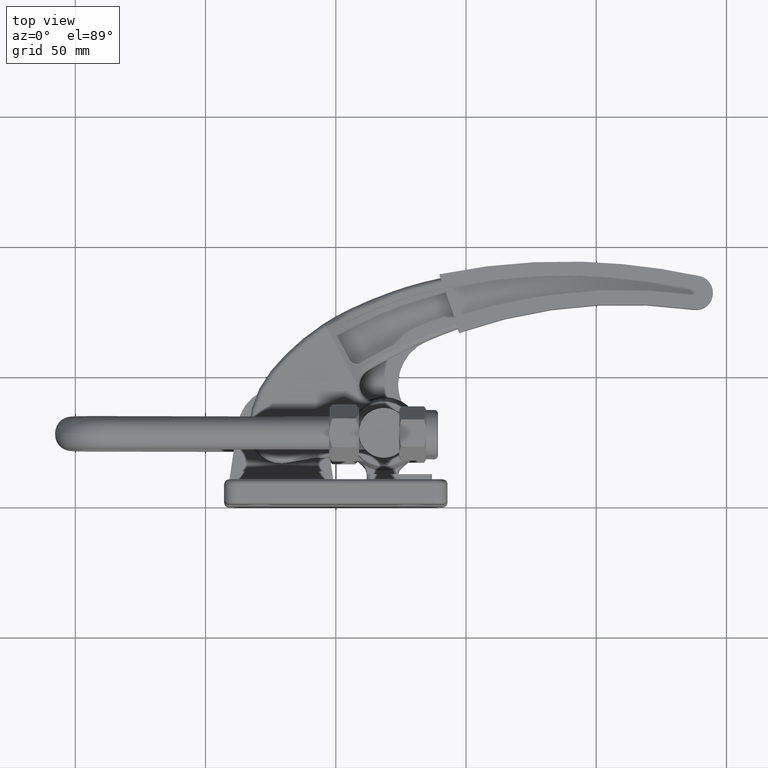
[diagram: clean part render]
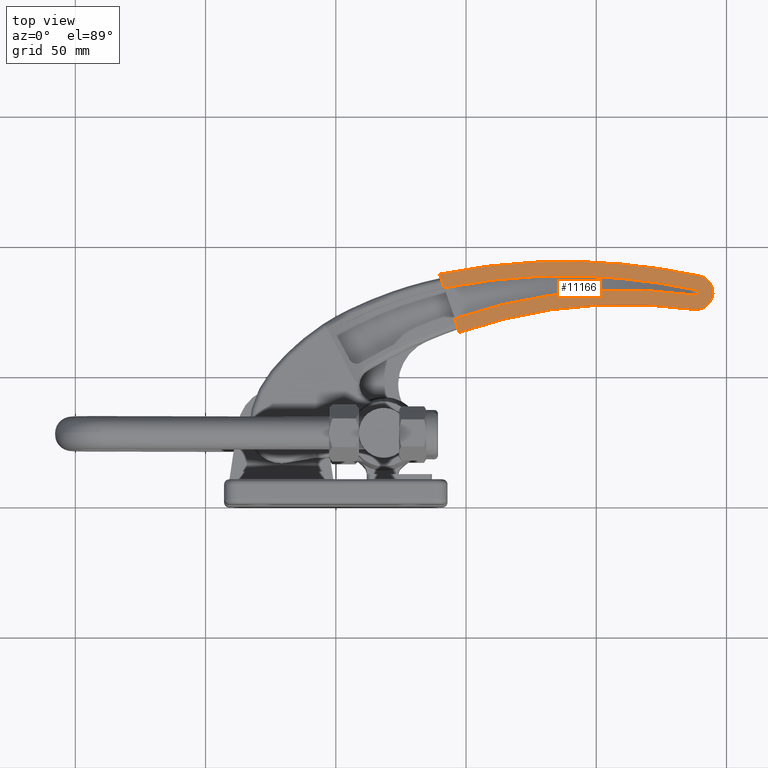
[diagram: same view with one face highlighted and labeled with its STEP entity id]
A machine part, top view. The second image highlights one B-rep face of the part: STEP entity #11166.
In plain terms, the highlighted planar face has unit normal (0, 0, 1).
Its self-contained STEP definition (entity closure, byte-faithful):
#222 = VERTEX_POINT ( 'NONE', #5980 ) ;
#911 = CARTESIAN_POINT ( 'NONE',  ( 94.87340458729696000, 93.64423540940474300, 7.499999999999999100 ) ) ;
#988 = CARTESIAN_POINT ( 'NONE',  ( 47.43252671059751400, 66.53173684207375500, 7.499999999999999100 ) ) ;
#1128 = CIRCLE ( 'NONE', #10794, 146.0000000000000000 ) ;
#1360 = AXIS2_PLACEMENT_3D ( 'NONE', #7914, #1967, #8925 ) ;
#1401 = AXIS2_PLACEMENT_3D ( 'NONE', #11008, #4984, #12006 ) ;
#1775 = ORIENTED_EDGE ( 'NONE', *, *, #11698, .T. ) ;
#1804 = ORIENTED_EDGE ( 'NONE', *, *, #8759, .F. ) ;
#1834 = CARTESIAN_POINT ( 'NONE',  ( 42.55375119779429100, 83.79626439661022600, 7.499999999999999100 ) ) ;
#1967 = DIRECTION ( 'NONE',  ( -0.0000000000000000000, 0.0000000000000000000, -1.000000000000000000 ) ) ;
#2015 = DIRECTION ( 'NONE',  ( 0.3235950078381081800, -0.9461956831978545200, 0.0000000000000000000 ) ) ;
#2427 = DIRECTION ( 'NONE',  ( 0.0000000000000000000, 0.0000000000000000000, 1.000000000000000000 ) ) ;
#2520 = CIRCLE ( 'NONE', #1360, 190.5000000000000600 ) ;
#2587 = CIRCLE ( 'NONE', #1401, 241.0000000000000300 ) ;
#2628 = VERTEX_POINT ( 'NONE', #5590 ) ;
#3198 = ORIENTED_EDGE ( 'NONE', *, *, #10020, .F. ) ;
#3353 = CARTESIAN_POINT ( 'NONE',  ( 137.3676987927290400, 75.36749533969890500, 7.499999999999999100 ) ) ;
#3560 = CARTESIAN_POINT ( 'NONE',  ( 94.70680217560476400, 88.14675929427542700, 7.499999999999999100 ) ) ;
#3565 = EDGE_CURVE ( 'NONE', #7990, #222, #1128, .T. ) ;
#3676 = CARTESIAN_POINT ( 'NONE',  ( 45.65270054022794700, 71.73596990641313200, 7.499999999999999100 ) ) ;
#3736 = VERTEX_POINT ( 'NONE', #3560 ) ;
#3821 = VERTEX_POINT ( 'NONE', #3676 ) ;
#3953 = CARTESIAN_POINT ( 'NONE',  ( 39.80002990425727200, 88.84924902629627800, 7.499999999999999100 ) ) ;
#4079 = ORIENTED_EDGE ( 'NONE', *, *, #6154, .T. ) ;
#4175 = EDGE_CURVE ( 'NONE', #4869, #10210, #2520, .T. ) ;
#4187 = AXIS2_PLACEMENT_3D ( 'NONE', #8393, #2427, #9399 ) ;
#4341 = ORIENTED_EDGE ( 'NONE', *, *, #12732, .T. ) ;
#4550 = VERTEX_POINT ( 'NONE', #9247 ) ;
#4574 = ORIENTED_EDGE ( 'NONE', *, *, #12062, .F. ) ;
#4628 = CARTESIAN_POINT ( 'NONE',  ( 87.70950088453489000, -142.7472375411598500, 7.499999999999999100 ) ) ;
#4681 = CIRCLE ( 'NONE', #6089, 0.9999999999999839000 ) ;
#4869 = VERTEX_POINT ( 'NONE', #988 ) ;
#4924 = DIRECTION ( 'NONE',  ( 0.0000000000000000000, 0.0000000000000000000, 1.000000000000000000 ) ) ;
#4974 = DIRECTION ( 'NONE',  ( 0.0000000000000000000, 0.0000000000000000000, 1.000000000000000000 ) ) ;
#4984 = DIRECTION ( 'NONE',  ( 0.0000000000000000000, 0.0000000000000000000, 1.000000000000000000 ) ) ;
#5297 = AXIS2_PLACEMENT_3D ( 'NONE', #5780, #12768, #6791 ) ;
#5347 = DIRECTION ( 'NONE',  ( 0.0000000000000000000, 0.0000000000000000000, 1.000000000000000000 ) ) ;
#5351 = CARTESIAN_POINT ( 'NONE',  ( 138.2846232747321800, 81.80249724290790400, 7.499999999999999100 ) ) ;
#5371 = DIRECTION ( 'NONE',  ( 0.0000000000000000000, 0.0000000000000000000, 1.000000000000000000 ) ) ;
#5432 = CARTESIAN_POINT ( 'NONE',  ( 39.80002990425725100, 88.84924902629627800, 7.499999999999999100 ) ) ;
#5550 = DIRECTION ( 'NONE',  ( 0.0000000000000000000, 0.0000000000000000000, 1.000000000000000000 ) ) ;
#5590 = CARTESIAN_POINT ( 'NONE',  ( 138.4966150908405800, 82.77976868416823200, 7.499999999999999100 ) ) ;
#5630 = DIRECTION ( 'NONE',  ( 0.9995411118417111300, -0.03029134758038943100, 0.0000000000000000000 ) ) ;
#5757 = AXIS2_PLACEMENT_3D ( 'NONE', #4628, #11636, #5630 ) ;
#5780 = CARTESIAN_POINT ( 'NONE',  ( 110.4947582047914400, -113.2275604389645900, 7.499999999999999100 ) ) ;
#5980 = CARTESIAN_POINT ( 'NONE',  ( 41.59465351681020500, 83.60174806357420600, 7.499999999999999100 ) ) ;
#5998 = CIRCLE ( 'NONE', #5297, 196.0000000000000900 ) ;
#6089 = AXIS2_PLACEMENT_3D ( 'NONE', #10999, #4974, #12000 ) ;
#6154 = EDGE_CURVE ( 'NONE', #6301, #9243, #10310, .T. ) ;
#6285 = CIRCLE ( 'NONE', #8763, 0.9999999999999839000 ) ;
#6294 = ORIENTED_EDGE ( 'NONE', *, *, #3565, .F. ) ;
#6301 = VERTEX_POINT ( 'NONE', #12707 ) ;
#6317 = ORIENTED_EDGE ( 'NONE', *, *, #12884, .F. ) ;
#6372 = DIRECTION ( 'NONE',  ( 0.9995411118417112400, -0.03029134758038857000, 0.0000000000000000000 ) ) ;
#6610 = VERTEX_POINT ( 'NONE', #12829 ) ;
#6667 = EDGE_CURVE ( 'NONE', #7503, #222, #10456, .T. ) ;
#6791 = DIRECTION ( 'NONE',  ( 0.9995411118417110200, -0.03029134758039207100, 0.0000000000000000000 ) ) ;
#6932 = LINE ( 'NONE', #5432, #9278 ) ;
#6958 = ORIENTED_EDGE ( 'NONE', *, *, #6667, .T. ) ;
#7503 = VERTEX_POINT ( 'NONE', #3953 ) ;
#7626 = ORIENTED_EDGE ( 'NONE', *, *, #9671, .T. ) ;
#7784 = VECTOR ( 'NONE', #2015, 999.9999999999998900 ) ;
#7809 = CIRCLE ( 'NONE', #5757, 236.4999999999999100 ) ;
#7914 = CARTESIAN_POINT ( 'NONE',  ( 110.4947582047914400, -113.2275604389645900, 7.499999999999999100 ) ) ;
#7931 = CARTESIAN_POINT ( 'NONE',  ( 39.80002990425725100, 88.84924902629627800, 7.499999999999999100 ) ) ;
#7941 = AXIS2_PLACEMENT_3D ( 'NONE', #11548, #5550, #12546 ) ;
#7990 = VERTEX_POINT ( 'NONE', #1834 ) ;
#8051 = CIRCLE ( 'NONE', #8566, 6.499999999999923600 ) ;
#8393 = CARTESIAN_POINT ( 'NONE',  ( 138.2846232747321800, 81.80249724290790400, 7.499999999999999100 ) ) ;
#8536 = EDGE_CURVE ( 'NONE', #3736, #7990, #11153, .T. ) ;
#8566 = AXIS2_PLACEMENT_3D ( 'NONE', #5351, #12350, #6372 ) ;
#8759 = EDGE_CURVE ( 'NONE', #6610, #4550, #6285, .T. ) ;
#8763 = AXIS2_PLACEMENT_3D ( 'NONE', #10924, #4924, #11936 ) ;
#8925 = DIRECTION ( 'NONE',  ( 0.9995411118417111300, -0.03029134758038945800, 0.0000000000000000000 ) ) ;
#9243 = VERTEX_POINT ( 'NONE', #911 ) ;
#9247 = CARTESIAN_POINT ( 'NONE',  ( 139.2841643865738800, 81.77220589532751700, 7.499999999999999100 ) ) ;
#9278 = VECTOR ( 'NONE', #12445, 999.9999999999998900 ) ;
#9399 = DIRECTION ( 'NONE',  ( 0.9995411118417111300, -0.03029134758038943400, 0.0000000000000000000 ) ) ;
#9568 = ORIENTED_EDGE ( 'NONE', *, *, #8536, .F. ) ;
#9671 = EDGE_CURVE ( 'NONE', #9243, #7503, #7809, .T. ) ;
#9688 = AXIS2_PLACEMENT_3D ( 'NONE', #11371, #5371, #12367 ) ;
#10020 = EDGE_CURVE ( 'NONE', #4550, #2628, #4681, .T. ) ;
#10210 = VERTEX_POINT ( 'NONE', #3353 ) ;
#10308 = PLANE ( 'NONE',  #4187 ) ;
#10310 = CIRCLE ( 'NONE', #7941, 246.4999999999999100 ) ;
#10408 = EDGE_LOOP ( 'NONE', ( #6317, #4341, #12248, #1775, #4079, #7626, #6958, #6294, #9568, #4574, #3198, #1804 ) ) ;
#10456 = LINE ( 'NONE', #7931, #7784 ) ;
#10794 = AXIS2_PLACEMENT_3D ( 'NONE', #11358, #5347, #12349 ) ;
#10924 = CARTESIAN_POINT ( 'NONE',  ( 138.2846232747321800, 81.80249724290790400, 7.499999999999999100 ) ) ;
#10999 = CARTESIAN_POINT ( 'NONE',  ( 138.2846232747321800, 81.80249724290790400, 7.499999999999999100 ) ) ;
#11008 = CARTESIAN_POINT ( 'NONE',  ( 87.40658740873099900, -152.7426486595769600, 7.499999999999999100 ) ) ;
#11153 = CIRCLE ( 'NONE', #9688, 231.0000000000000000 ) ;
#11166 = ADVANCED_FACE ( 'NONE', ( #12938 ), #10308, .T. ) ;
#11358 = CARTESIAN_POINT ( 'NONE',  ( 71.09374883530134100, -59.38707449046522400, 7.499999999999999100 ) ) ;
#11371 = CARTESIAN_POINT ( 'NONE',  ( 87.70950088453489000, -142.7472375411598500, 7.499999999999999100 ) ) ;
#11548 = CARTESIAN_POINT ( 'NONE',  ( 87.40658740873099900, -152.7426486595769600, 7.499999999999999100 ) ) ;
#11636 = DIRECTION ( 'NONE',  ( 0.0000000000000000000, 0.0000000000000000000, 1.000000000000000000 ) ) ;
#11698 = EDGE_CURVE ( 'NONE', #10210, #6301, #8051, .T. ) ;
#11936 = DIRECTION ( 'NONE',  ( 0.9995411118417113500, -0.03029134758038336600, 0.0000000000000000000 ) ) ;
#12000 = DIRECTION ( 'NONE',  ( 0.9995411118417113500, -0.03029134758038336600, 0.0000000000000000000 ) ) ;
#12006 = DIRECTION ( 'NONE',  ( 0.9995411118417111300, -0.03029134758038937900, 0.0000000000000000000 ) ) ;
#12062 = EDGE_CURVE ( 'NONE', #2628, #3736, #2587, .T. ) ;
#12248 = ORIENTED_EDGE ( 'NONE', *, *, #4175, .T. ) ;
#12349 = DIRECTION ( 'NONE',  ( 0.9995411118417112400, -0.03029134758038943400, 0.0000000000000000000 ) ) ;
#12350 = DIRECTION ( 'NONE',  ( 0.0000000000000000000, 0.0000000000000000000, 1.000000000000000000 ) ) ;
#12367 = DIRECTION ( 'NONE',  ( 0.9995411118417111300, -0.03029134758038942700, 0.0000000000000000000 ) ) ;
#12445 = DIRECTION ( 'NONE',  ( 0.3235950078381081800, -0.9461956831978545200, 0.0000000000000000000 ) ) ;
#12546 = DIRECTION ( 'NONE',  ( 0.9995411118417111300, -0.03029134758038939300, 0.0000000000000000000 ) ) ;
#12707 = CARTESIAN_POINT ( 'NONE',  ( 139.6625700794363600, 88.15476161110007100, 7.499999999999999100 ) ) ;
#12732 = EDGE_CURVE ( 'NONE', #3821, #4869, #6932, .T. ) ;
#12768 = DIRECTION ( 'NONE',  ( -0.0000000000000000000, -0.0000000000000000000, -1.000000000000000000 ) ) ;
#12829 = CARTESIAN_POINT ( 'NONE',  ( 138.1435579698086300, 80.81249695010653500, 7.499999999999999100 ) ) ;
#12884 = EDGE_CURVE ( 'NONE', #3821, #6610, #5998, .T. ) ;
#12938 = FACE_OUTER_BOUND ( 'NONE', #10408, .T. ) ;